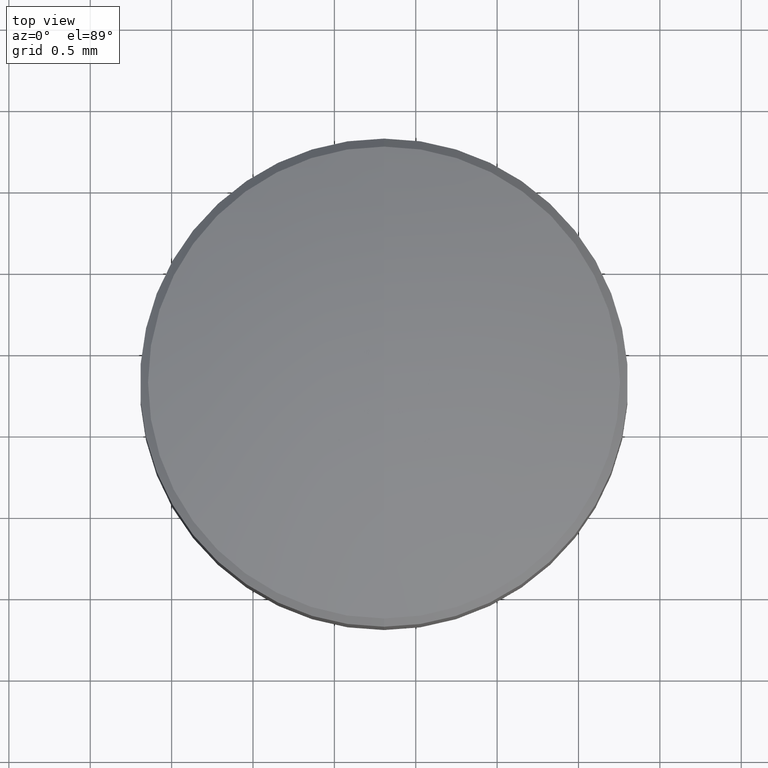
[diagram: clean part render]
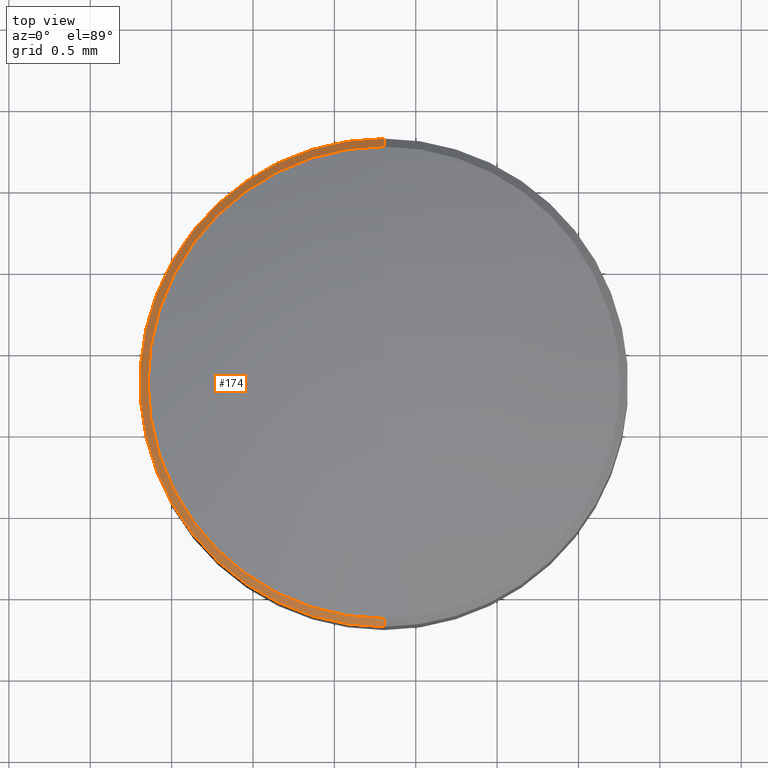
[diagram: same view with one face highlighted and labeled with its STEP entity id]
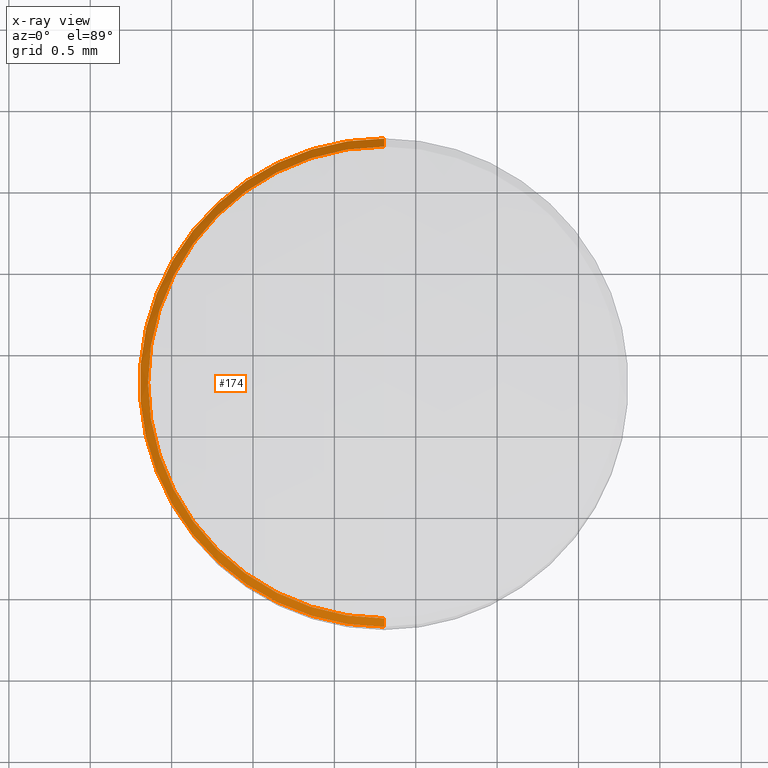
[diagram: x-ray of the same camera — body ghosted, the highlighted face saturated]
A machine part, top view. The second image highlights one B-rep face of the part: STEP entity #174.
The next image is the same camera in x-ray: the body ghosted, the highlighted face saturated — about 0% of this face is hidden behind the body in this view.
In plain terms, the highlighted conical surface has half-angle 45 deg.
Its self-contained STEP definition (entity closure, byte-faithful):
#4 = ORIENTED_EDGE ( 'NONE', *, *, #192, .F. ) ;
#19 = DIRECTION ( 'NONE',  ( 0.0000000000000000000, 1.000000000000000000, 0.0000000000000000000 ) ) ;
#43 = EDGE_CURVE ( 'NONE', #87, #281, #77, .T. ) ;
#48 = DIRECTION ( 'NONE',  ( -0.0000000000000000000, 1.224646799147353207E-16, -1.000000000000000000 ) ) ;
#52 = EDGE_LOOP ( 'NONE', ( #4, #69, #82, #239 ) ) ;
#53 = AXIS2_PLACEMENT_3D ( 'NONE', #257, #117, #262 ) ;
#55 = FACE_OUTER_BOUND ( 'NONE', #52, .T. ) ;
#69 = ORIENTED_EDGE ( 'NONE', *, *, #43, .T. ) ;
#71 = EDGE_CURVE ( 'NONE', #227, #215, #198, .T. ) ;
#77 = CIRCLE ( 'NONE', #53, 1.450000000000001066 ) ;
#80 = AXIS2_PLACEMENT_3D ( 'NONE', #162, #200, #19 ) ;
#82 = ORIENTED_EDGE ( 'NONE', *, *, #271, .T. ) ;
#87 = VERTEX_POINT ( 'NONE', #144 ) ;
#96 = CARTESIAN_POINT ( 'NONE',  ( 0.8048939134660000327, -0.1881319013420444108, 3.109492859778959950 ) ) ;
#98 = CONICAL_SURFACE ( 'NONE', #282, 1.499999999999999778, 0.7853981633974482790 ) ;
#103 = VECTOR ( 'NONE', #241, 1000.000000000000000 ) ;
#105 = DIRECTION ( 'NONE',  ( 0.0000000000000000000, 0.7071067811865476838, -0.7071067811865474617 ) ) ;
#117 = DIRECTION ( 'NONE',  ( -0.0000000000000000000, 1.224646799147353207E-16, -1.000000000000000000 ) ) ;
#144 = CARTESIAN_POINT ( 'NONE',  ( 0.8048939134660000327, -0.1381319013420453656, 3.159492859778958884 ) ) ;
#162 = CARTESIAN_POINT ( 'NONE',  ( 0.8048939134659998107, 1.311868098657955617, 3.109492859778959950 ) ) ;
#164 = VECTOR ( 'NONE', #105, 1000.000000000000000 ) ;
#174 = ADVANCED_FACE ( 'NONE', ( #55 ), #98, .T. ) ;
#192 = EDGE_CURVE ( 'NONE', #87, #227, #279, .T. ) ;
#198 = CIRCLE ( 'NONE', #80, 1.499999999999999778 ) ;
#200 = DIRECTION ( 'NONE',  ( -0.0000000000000000000, 1.224646799147353207E-16, -1.000000000000000000 ) ) ;
#202 = CARTESIAN_POINT ( 'NONE',  ( 0.8048939134659998107, 2.811868098657955617, 3.109492859778959950 ) ) ;
#203 = LINE ( 'NONE', #221, #164 ) ;
#204 = DIRECTION ( 'NONE',  ( 0.0000000000000000000, 1.000000000000000000, 0.0000000000000000000 ) ) ;
#215 = VERTEX_POINT ( 'NONE', #202 ) ;
#221 = CARTESIAN_POINT ( 'NONE',  ( 0.8048939134659998107, 2.811868098657955617, 3.109492859778959950 ) ) ;
#227 = VERTEX_POINT ( 'NONE', #242 ) ;
#239 = ORIENTED_EDGE ( 'NONE', *, *, #71, .F. ) ;
#241 = DIRECTION ( 'NONE',  ( 8.659560562354934091E-17, -0.7071067811865474617, -0.7071067811865476838 ) ) ;
#242 = CARTESIAN_POINT ( 'NONE',  ( 0.8048939134660000327, -0.1881319013420444108, 3.109492859778959950 ) ) ;
#252 = CARTESIAN_POINT ( 'NONE',  ( 0.8048939134659998107, 2.761868098657956683, 3.159492859778958884 ) ) ;
#257 = CARTESIAN_POINT ( 'NONE',  ( 0.8048939134659998107, 1.311868098657955617, 3.159492859778958884 ) ) ;
#262 = DIRECTION ( 'NONE',  ( 0.0000000000000000000, 1.000000000000000000, 0.0000000000000000000 ) ) ;
#271 = EDGE_CURVE ( 'NONE', #281, #215, #203, .T. ) ;
#275 = CARTESIAN_POINT ( 'NONE',  ( 0.8048939134659998107, 1.311868098657955617, 3.109492859778959950 ) ) ;
#279 = LINE ( 'NONE', #96, #103 ) ;
#281 = VERTEX_POINT ( 'NONE', #252 ) ;
#282 = AXIS2_PLACEMENT_3D ( 'NONE', #275, #48, #204 ) ;